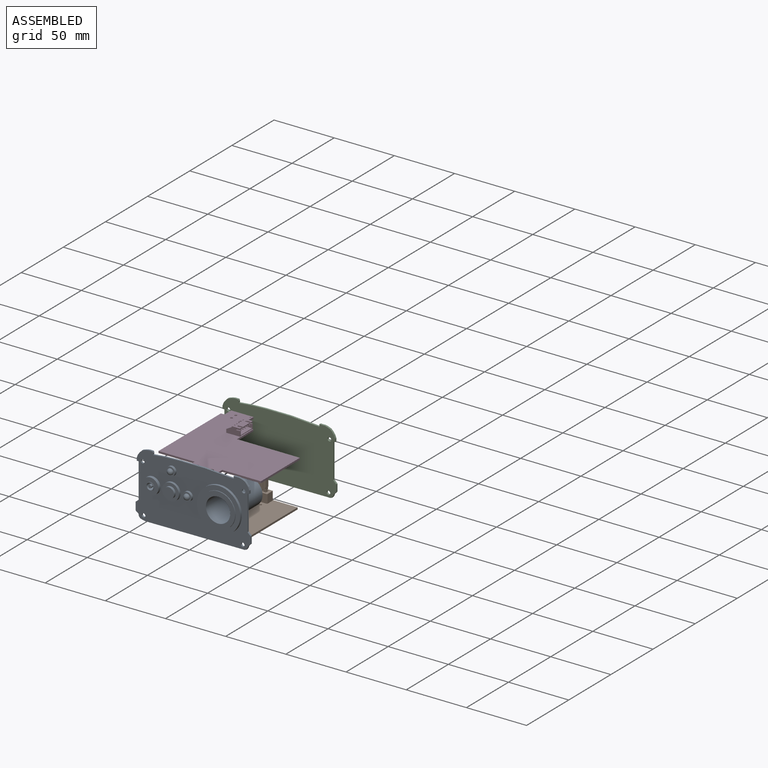
[diagram: assembled view]
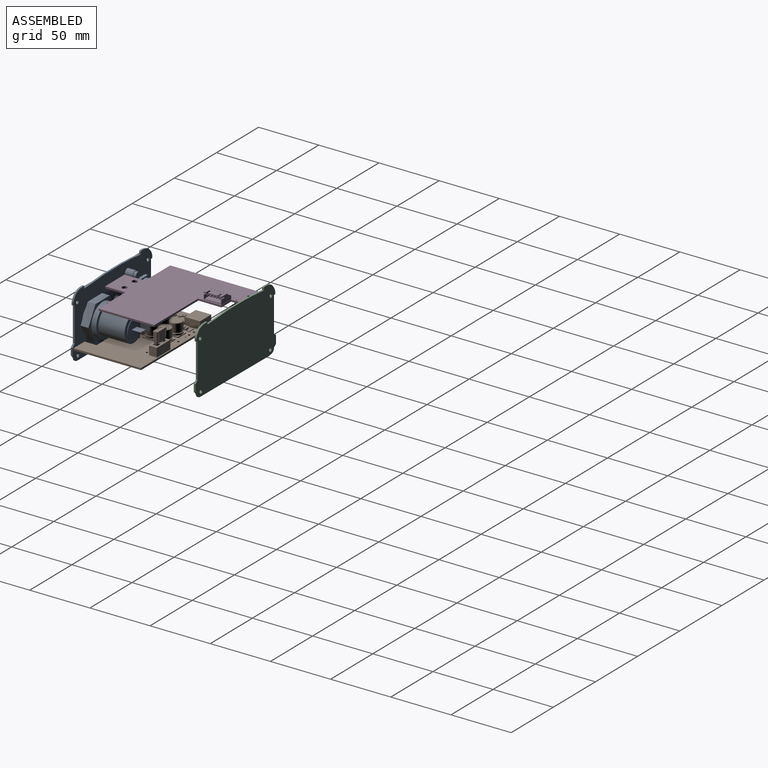
[diagram: assembled view, second angle]
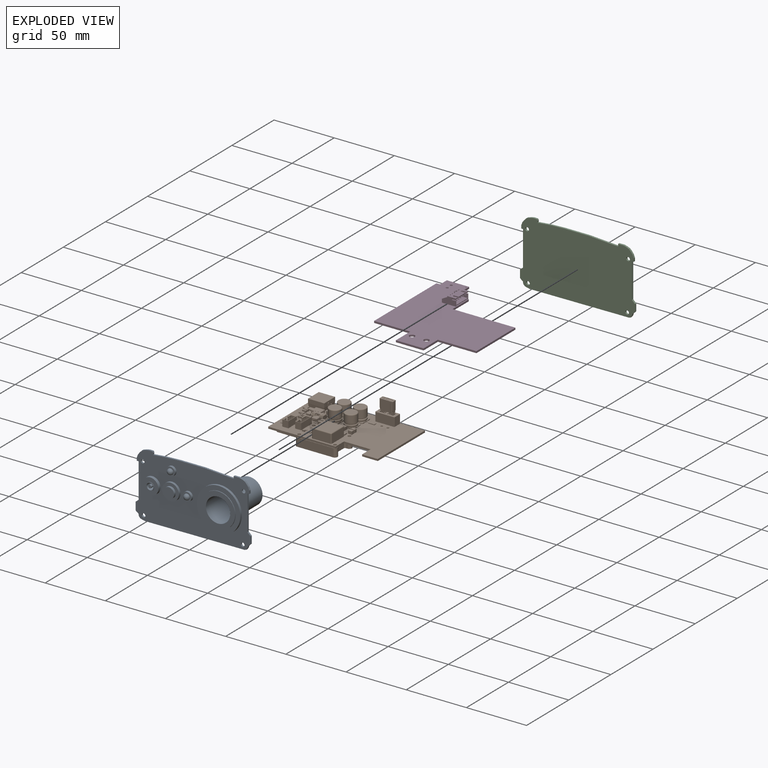
[diagram: exploded view]
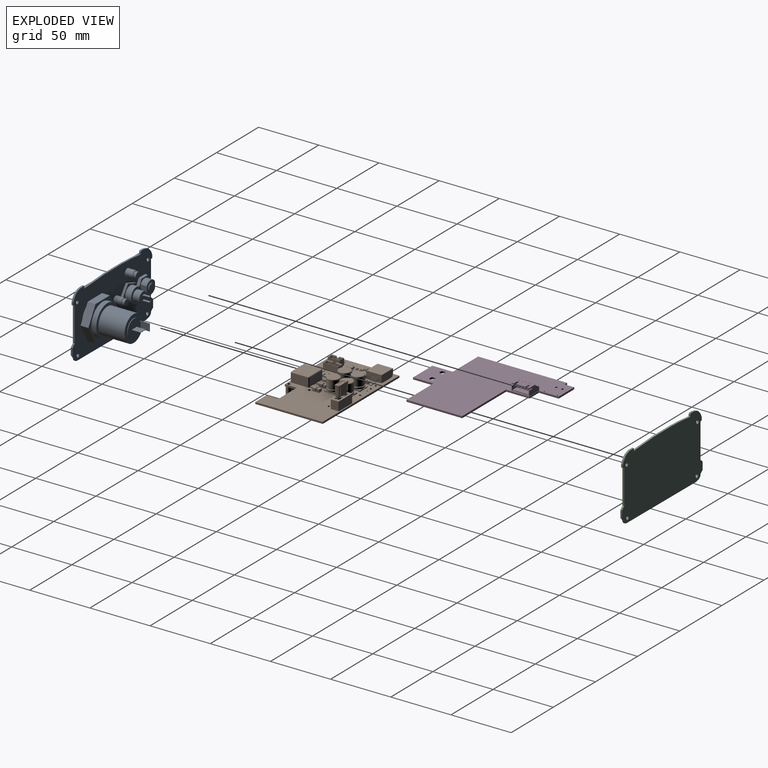
[diagram: exploded view, second angle]
FCSTD DOCUMENT  (FreeCAD 0.21R33694 (Git))
Label: case
License: All rights reserved
LicenseURL: http://en.wikipedia.org/wiki/All_rights_reserved
objects: App::Link×4, Sketcher::SketchObject×1, Part::Part2DObjectPython×1, Part::Extrusion×1, Part::Box×1, Part::MultiFuse×1
note: 5 computed .brp shape members not serialized (recipe doc carries the construction recipe); baked Part::Feature solids carry a one-line shape summary decoded from their .brp
EXTERNAL_REF file=front.FCStd obj=front_1
EXTERNAL_REF file=back.FCStd obj=back_1
EXTERNAL_REF file=pcb.FCStd obj=peak_ignitor_box_1
EXTERNAL_REF file=bms.FCStd obj=peak_ignitor_box_bms_1

FEATURE [Sketcher::SketchObject] Sketch
  FullyConstrained = false
  Placement = pos=(1.20227,0,0) rot=(0,0,1;0rad)
  sketch-geometry (244):
    g0: LineSegment StartX=-25.9049 StartY=13.1373 StartZ=0 EndX=-25.7102 EndY=14.7684 EndZ=0
    g1: LineSegment StartX=-25.7102 StartY=14.7684 StartZ=0 EndX=-25.0529 EndY=16.2292 EndZ=0
    g2: LineSegment StartX=-25.0529 StartY=16.2292 StartZ=0 EndX=-24.1277 EndY=17.276 EndZ=0
    g3: LineSegment StartX=-24.1277 StartY=17.276 StartZ=0 EndX=-22.9348 EndY=18.2011 EndZ=0
    g4: LineSegment StartX=-22.9348 StartY=18.2011 StartZ=0 EndX=-21.6689 EndY=18.615 EndZ=0
    g5: LineSegment StartX=-21.6689 StartY=18.615 StartZ=0 EndX=-19.6952 EndY=18.7908 EndZ=0
    g6: LineSegment StartX=-19.6952 StartY=18.7908 StartZ=0 EndX=-18.551 EndY=18.7421 EndZ=0
    g7: LineSegment StartX=-18.551 StartY=18.7421 StartZ=0 EndX=-18.0154 EndY=18.1821 EndZ=0
    g8: LineSegment StartX=-18.0154 StartY=18.1821 StartZ=0 EndX=-16.652 EndY=18.2795 EndZ=0
    g9: LineSegment StartX=-16.652 StartY=18.2795 StartZ=0 EndX=-11.15 EndY=18.7177 EndZ=0
    g10: LineSegment StartX=-11.15 StartY=18.7177 StartZ=0 EndX=-5.55062 EndY=18.9855 EndZ=0
    g11: LineSegment StartX=-5.55062 StartY=18.9855 StartZ=0 EndX=-0.608538 EndY=18.9855 EndZ=0
    g12: LineSegment StartX=-0.608538 StartY=18.9855 StartZ=0 EndX=-0.632884 EndY=18.5717 EndZ=0
    g13: LineSegment StartX=-0.632884 StartY=18.5717 StartZ=0 EndX=0.438309 EndY=18.3526 EndZ=0
    g14: LineSegment StartX=0.438309 StartY=18.3526 StartZ=0 EndX=0.608723 EndY=19.0586 EndZ=0
    g15: LineSegment StartX=0.608723 StartY=19.0586 StartZ=0 EndX=1.65557 EndY=19.0586 EndZ=0
    g16: LineSegment StartX=1.65557 StartY=19.0586 StartZ=0 EndX=1.75295 EndY=18.3526 EndZ=0
    g17: LineSegment StartX=1.75295 StartY=18.3526 StartZ=0 EndX=2.75111 EndY=18.3526 EndZ=0
    g18: LineSegment StartX=2.75111 StartY=18.3526 StartZ=0 EndX=2.84849 EndY=18.9612 EndZ=0
    g19: LineSegment StartX=2.84849 StartY=18.9612 StartZ=0 EndX=3.87099 EndY=18.9612 EndZ=0
    g20: LineSegment StartX=3.87099 StartY=18.9612 StartZ=0 EndX=4.0414 EndY=18.4013 EndZ=0
    g21: LineSegment StartX=4.0414 StartY=18.4013 StartZ=0 EndX=5.16128 EndY=18.4013 EndZ=0
    g22: LineSegment StartX=5.16128 StartY=18.4013 StartZ=0 EndX=5.12826 EndY=19.0391 EndZ=0
    g23: LineSegment StartX=5.12826 StartY=19.0391 StartZ=0 EndX=6.12641 EndY=19.0391 EndZ=0
    g24: LineSegment StartX=6.12641 StartY=19.0391 StartZ=0 EndX=6.29683 EndY=18.3575 EndZ=0
    g25: LineSegment StartX=6.29683 StartY=18.3575 StartZ=0 EndX=7.34368 EndY=18.3575 EndZ=0
    g26: LineSegment StartX=7.34368 StartY=18.3575 StartZ=0 EndX=7.31933 EndY=19.0148 EndZ=0
    g27: LineSegment StartX=7.31933 StartY=19.0148 StartZ=0 EndX=8.39052 EndY=19.0148 EndZ=0
    g28: LineSegment StartX=8.39052 StartY=19.0148 StartZ=0 EndX=8.60963 EndY=18.2601 EndZ=0
    g29: LineSegment StartX=8.60963 StartY=18.2601 StartZ=0 EndX=9.58344 EndY=18.2601 EndZ=0
    g30: LineSegment StartX=9.58344 StartY=18.2601 StartZ=0 EndX=9.68082 EndY=18.9418 EndZ=0
    g31: LineSegment StartX=9.68082 StartY=18.9418 StartZ=0 EndX=10.7764 EndY=18.7957 EndZ=0
    g32: LineSegment StartX=10.7764 StartY=18.7957 StartZ=0 EndX=10.9468 EndY=18.1627 EndZ=0
    g33: LineSegment StartX=10.9468 StartY=18.1627 StartZ=0 EndX=11.8962 EndY=18.1627 EndZ=0
    g34: LineSegment StartX=11.8962 StartY=18.1627 StartZ=0 EndX=11.9936 EndY=18.674 EndZ=0
    g35: LineSegment StartX=11.9936 StartY=18.674 StartZ=0 EndX=13.1378 EndY=18.674 EndZ=0
    g36: LineSegment StartX=13.1378 StartY=18.674 StartZ=0 EndX=13.1865 EndY=18.1384 EndZ=0
    g37: LineSegment StartX=13.1865 StartY=18.1384 StartZ=0 EndX=14.2821 EndY=18.0653 EndZ=0
    g38: LineSegment StartX=14.2821 StartY=18.0653 StartZ=0 EndX=14.2577 EndY=18.5766 EndZ=0
    g39: LineSegment StartX=14.2577 StartY=18.5766 StartZ=0 EndX=15.3533 EndY=18.5035 EndZ=0
    g40: LineSegment StartX=15.3533 StartY=18.5035 StartZ=0 EndX=15.4263 EndY=17.9679 EndZ=0
    g41: LineSegment StartX=15.4263 StartY=17.9679 StartZ=0 EndX=16.4975 EndY=17.8462 EndZ=0
    g42: LineSegment StartX=16.4975 StartY=17.8462 StartZ=0 EndX=16.5462 EndY=18.4062 EndZ=0
    g43: LineSegment StartX=16.5462 StartY=18.4062 StartZ=0 EndX=17.6174 EndY=18.3331 EndZ=0
    g44: LineSegment StartX=17.6174 StartY=18.3331 StartZ=0 EndX=17.7634 EndY=17.7002 EndZ=0
    g45: LineSegment StartX=17.7634 StartY=17.7002 StartZ=0 EndX=18.8833 EndY=17.7488 EndZ=0
    g46: LineSegment StartX=18.8833 StartY=17.7488 StartZ=0 EndX=18.9077 EndY=18.1627 EndZ=0
    g47: LineSegment StartX=18.9077 StartY=18.1627 StartZ=0 EndX=19.9058 EndY=18.1627 EndZ=0
    g48: LineSegment StartX=19.9058 StartY=18.1627 StartZ=0 EndX=20.1736 EndY=18.6253 EndZ=0
    g49: LineSegment StartX=20.1736 StartY=18.6253 StartZ=0 EndX=21.2448 EndY=18.6983 EndZ=0
    g50: LineSegment StartX=21.2448 StartY=18.6983 StartZ=0 EndX=23.0464 EndY=18.6009 EndZ=0
    g51: LineSegment StartX=23.0464 StartY=18.6009 StartZ=0 EndX=24.434 EndY=18.3818 EndZ=0
    g52: LineSegment StartX=24.434 StartY=18.3818 StartZ=0 EndX=25.5296 EndY=17.7245 EndZ=0
    g53: LineSegment StartX=25.5296 StartY=17.7245 StartZ=0 EndX=26.7712 EndY=16.5803 EndZ=0
    g54: LineSegment StartX=26.7712 StartY=16.5803 StartZ=0 EndX=27.4528 EndY=15.5091 EndZ=0
    g55: LineSegment StartX=27.4528 StartY=15.5091 StartZ=0 EndX=27.8667 EndY=14.2918 EndZ=0
    g56: LineSegment StartX=27.8667 StartY=14.2918 StartZ=0 EndX=27.9397 EndY=12.8798 EndZ=0
    g57: LineSegment StartX=27.9397 StartY=12.8798 StartZ=0 EndX=27.185 EndY=12.8798 EndZ=0
    g58: LineSegment StartX=27.185 StartY=12.8798 StartZ=0 EndX=27.0633 EndY=11.8329 EndZ=0
    g59: LineSegment StartX=27.0633 StartY=11.8329 StartZ=0 EndX=27.3068 EndY=11.6869 EndZ=0
    g60: LineSegment StartX=27.3068 StartY=11.6869 StartZ=0 EndX=27.3068 EndY=8.38419 EndZ=0
    g61: LineSegment StartX=27.3068 StartY=8.38419 StartZ=0 EndX=27.1194 EndY=8.38419 EndZ=0
    g62: LineSegment StartX=27.1194 StartY=8.38419 StartZ=0 EndX=27.0464 EndY=7.313 EndZ=0
    g63: LineSegment StartX=27.0464 StartY=7.313 StartZ=0 EndX=27.3872 EndY=7.19128 EndZ=0
    g64: LineSegment StartX=27.3872 StartY=7.19128 StartZ=0 EndX=27.3872 EndY=6.04705 EndZ=0
    g65: LineSegment StartX=27.3872 StartY=6.04705 StartZ=0 EndX=26.9733 EndY=5.99836 EndZ=0
    g66: LineSegment StartX=26.9733 StartY=5.99836 StartZ=0 EndX=26.9247 EndY=4.95152 EndZ=0
    g67: LineSegment StartX=26.9247 StartY=4.95152 StartZ=0 EndX=27.2655 EndY=4.90283 EndZ=0
    g68: LineSegment StartX=27.2655 StartY=4.90283 StartZ=0 EndX=27.3385 EndY=3.73426 EndZ=0
    g69: LineSegment StartX=27.3385 StartY=3.73426 StartZ=0 EndX=26.9733 EndY=3.61253 EndZ=0
    g70: LineSegment StartX=26.9733 StartY=3.61253 StartZ=0 EndX=26.9003 EndY=2.71176 EndZ=0
    g71: LineSegment StartX=26.9003 StartY=2.71176 StartZ=0 EndX=27.2411 EndY=2.54134 EndZ=0
    g72: LineSegment StartX=27.2411 StartY=2.54134 StartZ=0 EndX=27.3385 EndY=1.47015 EndZ=0
    g73: LineSegment StartX=27.3385 StartY=1.47015 StartZ=0 EndX=27.0464 EndY=1.39711 EndZ=0
    g74: LineSegment StartX=27.0464 StartY=1.39711 StartZ=0 EndX=27.0464 EndY=-3.8057 EndZ=0
    g75: LineSegment StartX=27.0464 StartY=-3.8057 StartZ=0 EndX=28.2635 EndY=-4.94992 EndZ=0
    g76: LineSegment StartX=28.2635 StartY=-4.94992 StartZ=0 EndX=28.4826 EndY=-8.47998 EndZ=0
    g77: LineSegment StartX=28.4826 StartY=-8.47998 StartZ=0 EndX=27.3384 EndY=-9.77028 EndZ=0
    g78: LineSegment StartX=27.3384 StartY=-9.77028 StartZ=0 EndX=26.7274 EndY=-10.9502 EndZ=0
    g79: LineSegment StartX=26.7274 StartY=-10.9502 StartZ=0 EndX=25.8023 EndY=-11.7293 EndZ=0
    g80: LineSegment StartX=25.8023 StartY=-11.7293 StartZ=0 EndX=24.9502 EndY=-11.851 EndZ=0
    g81: LineSegment StartX=24.9502 StartY=-11.851 StartZ=0 EndX=23.8059 EndY=-11.851 EndZ=0
    g82: LineSegment StartX=23.8059 StartY=-11.851 StartZ=0 EndX=23.6842 EndY=-12.3622 EndZ=0
    g83: LineSegment StartX=23.6842 StartY=-12.3622 StartZ=0 EndX=20.4463 EndY=-12.3622 EndZ=0
    g84: LineSegment StartX=20.4463 StartY=-12.3622 StartZ=0 EndX=20.3733 EndY=-11.851 EndZ=0
    g85: LineSegment StartX=20.3733 StartY=-11.851 StartZ=0 EndX=18.2552 EndY=-11.851 EndZ=0
    g86: LineSegment StartX=18.2552 StartY=-11.851 StartZ=0 EndX=18.2065 EndY=-12.4109 EndZ=0
    g87: LineSegment StartX=18.2065 StartY=-12.4109 StartZ=0 EndX=15.9668 EndY=-12.4109 EndZ=0
    g88: LineSegment StartX=15.9668 StartY=-12.4109 StartZ=0 EndX=15.9181 EndY=-11.8023 EndZ=0
    g89: LineSegment StartX=15.9181 StartY=-11.8023 StartZ=0 EndX=13.6053 EndY=-11.8023 EndZ=0
    g90: LineSegment StartX=13.6053 StartY=-11.8023 StartZ=0 EndX=13.6783 EndY=-12.3379 EndZ=0
    g91: LineSegment StartX=13.6783 StartY=-12.3379 StartZ=0 EndX=11.3655 EndY=-12.3379 EndZ=0
    g92: LineSegment StartX=11.3655 StartY=-12.3379 StartZ=0 EndX=11.2438 EndY=-11.8753 EndZ=0
    g93: LineSegment StartX=11.2438 StartY=-11.8753 StartZ=0 EndX=9.07707 EndY=-11.8753 EndZ=0
    g94: LineSegment StartX=9.07707 StartY=-11.8753 StartZ=0 EndX=8.97969 EndY=-12.3135 EndZ=0
    g95: LineSegment StartX=8.97969 StartY=-12.3135 StartZ=0 EndX=6.64255 EndY=-12.3135 EndZ=0
    g96: LineSegment StartX=6.64255 StartY=-12.3135 StartZ=0 EndX=6.64255 EndY=-11.851 EndZ=0
    g97: LineSegment StartX=6.64255 StartY=-11.851 StartZ=0 EndX=4.40279 EndY=-11.851 EndZ=0
    g98: LineSegment StartX=4.40279 StartY=-11.851 StartZ=0 EndX=4.3541 EndY=-12.3135 EndZ=0
    g99: LineSegment StartX=4.3541 StartY=-12.3135 StartZ=0 EndX=2.08999 EndY=-12.3135 EndZ=0
    g100: LineSegment StartX=2.08999 StartY=-12.3135 StartZ=0 EndX=2.02071 EndY=-11.7796 EndZ=0
    g101: LineSegment StartX=2.02071 StartY=-11.7796 StartZ=0 EndX=-0.194705 EndY=-11.7796 EndZ=0
    g102: LineSegment StartX=-0.194705 StartY=-11.7796 StartZ=0 EndX=-0.17036 EndY=-12.2422 EndZ=0
    g103: LineSegment StartX=-0.17036 StartY=-12.2422 StartZ=0 EndX=-2.43447 EndY=-12.3639 EndZ=0
    g104: LineSegment StartX=-2.43447 StartY=-12.3639 StartZ=0 EndX=-2.45881 EndY=-11.804 EndZ=0
    g105: LineSegment StartX=-2.45881 StartY=-11.804 StartZ=0 EndX=-4.72292 EndY=-11.804 EndZ=0
    g106: LineSegment StartX=-4.72292 StartY=-11.804 StartZ=0 EndX=-4.77161 EndY=-12.2909 EndZ=0
    g107: LineSegment StartX=-4.77161 StartY=-12.2909 StartZ=0 EndX=-7.03572 EndY=-12.3882 EndZ=0
    g108: LineSegment StartX=-7.03572 StartY=-12.3882 StartZ=0 EndX=-7.15744 EndY=-11.7553 EndZ=0
    g109: LineSegment StartX=-7.15744 StartY=-11.7553 StartZ=0 EndX=-9.49459 EndY=-11.8526 EndZ=0
    g110: LineSegment StartX=-9.49459 StartY=-11.8526 StartZ=0 EndX=-9.29983 EndY=-12.3639 EndZ=0
    g111: LineSegment StartX=-9.29983 StartY=-12.3639 StartZ=0 EndX=-11.5396 EndY=-12.3639 EndZ=0
    g112: LineSegment StartX=-11.5396 StartY=-12.3639 StartZ=0 EndX=-11.7343 EndY=-11.8283 EndZ=0
    g113: LineSegment StartX=-11.7343 StartY=-11.8283 StartZ=0 EndX=-13.9498 EndY=-11.8283 EndZ=0
    g114: LineSegment StartX=-13.9498 StartY=-11.8283 StartZ=0 EndX=-14.0471 EndY=-12.3152 EndZ=0
    g115: LineSegment StartX=-14.0471 StartY=-12.3152 StartZ=0 EndX=-16.1895 EndY=-12.4369 EndZ=0
    g116: LineSegment StartX=-16.1895 StartY=-12.4369 StartZ=0 EndX=-16.2139 EndY=-11.804 EndZ=0
    g117: LineSegment StartX=-16.2139 StartY=-11.804 StartZ=0 EndX=-18.551 EndY=-11.804 EndZ=0
    g118: LineSegment StartX=-18.551 StartY=-11.804 StartZ=0 EndX=-18.551 EndY=-12.2909 EndZ=0
    g119: LineSegment StartX=-18.551 StartY=-12.2909 StartZ=0 EndX=-21.6915 EndY=-12.2909 EndZ=0
    g120: LineSegment StartX=-21.6915 StartY=-12.2909 StartZ=0 EndX=-21.7159 EndY=-11.7796 EndZ=0
    g121: LineSegment StartX=-21.7159 StartY=-11.7796 StartZ=0 EndX=-22.7627 EndY=-11.8526 EndZ=0
    g122: LineSegment StartX=-22.7627 StartY=-11.8526 StartZ=0 EndX=-23.8826 EndY=-11.6092 EndZ=0
    g123: LineSegment StartX=-23.8826 StartY=-11.6092 StartZ=0 EndX=-24.9051 EndY=-10.611 EndZ=0
    g124: LineSegment StartX=-24.9051 StartY=-10.611 StartZ=0 EndX=-25.0755 EndY=-9.58854 EndZ=0
    g125: LineSegment StartX=-25.0755 StartY=-9.58854 StartZ=0 EndX=-26.3415 EndY=-8.41997 EndZ=0
    g126: LineSegment StartX=-26.3415 StartY=-8.41997 StartZ=0 EndX=-26.3415 EndY=-4.98696 EndZ=0
    g127: LineSegment StartX=-26.3415 StartY=-4.98696 StartZ=0 EndX=-25.0058 EndY=-3.79103 EndZ=0
    g128: LineSegment StartX=-25.0058 StartY=-3.79103 StartZ=0 EndX=-25.0058 EndY=1.35147 EndZ=0
    g129: LineSegment StartX=-25.0058 StartY=1.35147 StartZ=0 EndX=-25.3646 EndY=1.491 EndZ=0
    g130: LineSegment StartX=-25.3646 StartY=1.491 StartZ=0 EndX=-25.3646 EndY=2.70686 EndZ=0
    g131: LineSegment StartX=-25.3646 StartY=2.70686 StartZ=0 EndX=-25.0656 EndY=2.62713 EndZ=0
    g132: LineSegment StartX=-25.0656 StartY=2.62713 StartZ=0 EndX=-25.0243 EndY=3.77052 EndZ=0
    g133: LineSegment StartX=-25.0243 StartY=3.77052 StartZ=0 EndX=-25.3651 EndY=3.84355 EndZ=0
    g134: LineSegment StartX=-25.3651 StartY=3.84355 StartZ=0 EndX=-25.4625 EndY=4.96343 EndZ=0
    g135: LineSegment StartX=-25.4625 StartY=4.96343 StartZ=0 EndX=-25.073 EndY=4.93909 EndZ=0
    g136: LineSegment StartX=-25.073 StartY=4.93909 StartZ=0 EndX=-25.0243 EndY=5.96159 EndZ=0
    g137: LineSegment StartX=-25.0243 StartY=5.96159 StartZ=0 EndX=-25.3895 EndY=6.08331 EndZ=0
    g138: LineSegment StartX=-25.3895 StartY=6.08331 StartZ=0 EndX=-25.4382 EndY=7.10581 EndZ=0
    g139: LineSegment StartX=-25.4382 StartY=7.10581 StartZ=0 EndX=-25.073 EndY=7.30058 EndZ=0
    g140: LineSegment StartX=-25.073 StartY=7.30058 StartZ=0 EndX=-25.0243 EndY=8.29873 EndZ=0
    g141: LineSegment StartX=-25.0243 StartY=8.29873 StartZ=0 EndX=-25.3651 EndY=8.4448 EndZ=0
    g142: LineSegment StartX=-25.3651 StartY=8.4448 StartZ=0 EndX=-25.3651 EndY=11.7558 EndZ=0
    g143: LineSegment StartX=-25.3651 StartY=11.7558 StartZ=0 EndX=-25.146 EndY=11.8288 EndZ=0
    g144: LineSegment StartX=-25.146 StartY=11.8288 StartZ=0 EndX=-24.9756 EndY=12.8513 EndZ=0
    g145: LineSegment StartX=-24.9756 StartY=12.8513 StartZ=0 EndX=-25.9049 EndY=13.1373 EndZ=0
    g146: LineSegment StartX=-1.80546 StartY=17.6046 StartZ=0 EndX=-1.84555 EndY=18.2302 EndZ=0
    g147: LineSegment StartX=-1.84555 StartY=18.2302 StartZ=0 EndX=-7.43042 EndY=18.2302 EndZ=0
    g148: LineSegment StartX=-7.43042 StartY=18.2302 StartZ=0 EndX=-14.3192 EndY=17.6817 EndZ=0
    g149: LineSegment StartX=-14.3192 StartY=17.6817 StartZ=0 EndX=-17.3121 EndY=17.4278 EndZ=0
    g150: LineSegment StartX=-17.3121 StartY=17.4278 StartZ=0 EndX=-17.3121 EndY=16.4524 EndZ=0
    g151: LineSegment StartX=-17.3121 StartY=16.4524 StartZ=0 EndX=-18.0737 EndY=16.4124 EndZ=0
    g152: LineSegment StartX=-18.0737 StartY=16.4124 StartZ=0 EndX=-18.1138 EndY=15.4905 EndZ=0
    g153: LineSegment StartX=-18.1138 StartY=15.4905 StartZ=0 EndX=-18.1138 EndY=14.4349 EndZ=0
    g154: LineSegment StartX=-18.1138 StartY=14.4349 StartZ=0 EndX=-18.5146 EndY=13.9807 EndZ=0
    g155: LineSegment StartX=-18.5146 StartY=13.9807 StartZ=0 EndX=-19.1292 EndY=13.954 EndZ=0
    g156: LineSegment StartX=-19.1292 StartY=13.954 StartZ=0 EndX=-22.3625 EndY=13.954 EndZ=0
    g157: LineSegment StartX=-22.3625 StartY=13.954 StartZ=0 EndX=-22.8219 EndY=13.9209 EndZ=0
    g158: LineSegment StartX=-22.8219 StartY=13.9209 StartZ=0 EndX=-23.1693 EndY=14.1481 EndZ=0
    g159: LineSegment StartX=-23.1693 StartY=14.1481 StartZ=0 EndX=-23.5969 EndY=14.108 EndZ=0
    g160: LineSegment StartX=-23.5969 StartY=14.108 StartZ=0 EndX=-24.0912 EndY=13.814 EndZ=0
    g161: LineSegment StartX=-24.0912 StartY=13.814 StartZ=0 EndX=-24.158 EndY=13.3331 EndZ=0
    g162: LineSegment StartX=-24.158 StartY=13.3331 StartZ=0 EndX=-23.9042 EndY=12.8387 EndZ=0
    g163: LineSegment StartX=-23.9042 StartY=12.8387 StartZ=0 EndX=-23.6236 EndY=12.6516 EndZ=0
    g164: LineSegment StartX=-23.6236 StartY=12.6516 StartZ=0 EndX=-23.1292 EndY=12.6917 EndZ=0
    g165: LineSegment StartX=-23.1292 StartY=12.6917 StartZ=0 EndX=-22.6349 EndY=13.0391 EndZ=0
    g166: LineSegment StartX=-22.6349 StartY=13.0391 StartZ=0 EndX=-22.4879 EndY=12.7853 EndZ=0
    g167: LineSegment StartX=-22.4879 StartY=12.7853 StartZ=0 EndX=-22.4345 EndY=12.3176 EndZ=0
    g168: LineSegment StartX=-22.4345 StartY=12.3176 StartZ=0 EndX=-22.4345 EndY=11.8901 EndZ=0
    g169: LineSegment StartX=-22.4345 StartY=11.8901 StartZ=0 EndX=-22.7818 EndY=11.5828 EndZ=0
    g170: LineSegment StartX=-22.7818 StartY=11.5828 StartZ=0 EndX=-23.1693 EndY=11.4358 EndZ=0
    g171: LineSegment StartX=-23.1693 StartY=11.4358 StartZ=0 EndX=-24.1046 EndY=11.4759 EndZ=0
    g172: LineSegment StartX=-24.1046 StartY=11.4759 StartZ=0 EndX=-24.1046 EndY=2.57954 EndZ=0
    g173: LineSegment StartX=-24.1046 StartY=2.57954 StartZ=0 EndX=-24.1046 EndY=-5.1996 EndZ=0
    g174: LineSegment StartX=-24.1046 StartY=-5.1996 StartZ=0 EndX=-24.3445 EndY=-5.48018 EndZ=0
    g175: LineSegment StartX=-24.3445 StartY=-5.48018 StartZ=0 EndX=-25.1863 EndY=-5.48018 EndZ=0
    g176: LineSegment StartX=-25.1863 StartY=-5.48018 StartZ=0 EndX=-25.1863 EndY=-6.6025 EndZ=0
    g177: LineSegment StartX=-25.1863 StartY=-6.6025 StartZ=0 EndX=-24.104 EndY=-6.6025 EndZ=0
    g178: LineSegment StartX=-24.104 StartY=-6.6025 StartZ=0 EndX=-24.104 EndY=-7.28391 EndZ=0
    g179: LineSegment StartX=-24.104 StartY=-7.28391 StartZ=0 EndX=-25.1996 EndY=-7.37744 EndZ=0
    g180: LineSegment StartX=-25.1996 StartY=-7.37744 StartZ=0 EndX=-25.1328 EndY=-8.04549 EndZ=0
    g181: LineSegment StartX=-25.1328 StartY=-8.04549 StartZ=0 EndX=-24.0773 EndY=-9.00747 EndZ=0
    g182: LineSegment StartX=-24.0773 StartY=-9.00747 StartZ=0 EndX=-23.6364 EndY=-8.70017 EndZ=0
    g183: LineSegment StartX=-23.6364 StartY=-8.70017 StartZ=0 EndX=-23.1821 EndY=-8.45968 EndZ=0
    g184: LineSegment StartX=-23.1821 StartY=-8.45968 StartZ=0 EndX=-22.6744 EndY=-8.45968 EndZ=0
    g185: LineSegment StartX=-22.6744 StartY=-8.45968 StartZ=0 EndX=-21.9262 EndY=-8.83378 EndZ=0
    g186: LineSegment StartX=-21.9262 StartY=-8.83378 StartZ=0 EndX=-21.7525 EndY=-9.02084 EndZ=0
    g187: LineSegment StartX=-21.7525 StartY=-9.02084 StartZ=0 EndX=-22.1675 EndY=-9.3511 EndZ=0
    g188: LineSegment StartX=-22.1675 StartY=-9.3511 StartZ=0 EndX=-22.5416 EndY=-9.08389 EndZ=0
    g189: LineSegment StartX=-22.5416 StartY=-9.08389 StartZ=0 EndX=-22.9558 EndY=-8.85675 EndZ=0
    g190: LineSegment StartX=-22.9558 StartY=-8.85675 StartZ=0 EndX=-23.3031 EndY=-9.09724 EndZ=0
    g191: LineSegment StartX=-23.3031 StartY=-9.09724 StartZ=0 EndX=-23.6505 EndY=-9.47135 EndZ=0
    g192: LineSegment StartX=-23.6505 StartY=-9.47135 StartZ=0 EndX=-23.6772 EndY=-9.92562 EndZ=0
    g193: LineSegment StartX=-23.6772 StartY=-9.92562 StartZ=0 EndX=-23.3432 EndY=-10.3665 EndZ=0
    g194: LineSegment StartX=-23.3432 StartY=-10.3665 StartZ=0 EndX=-22.9691 EndY=-10.5135 EndZ=0
    g195: LineSegment StartX=-22.9691 StartY=-10.5135 StartZ=0 EndX=-22.4614 EndY=-10.3131 EndZ=0
    g196: LineSegment StartX=-22.4614 StartY=-10.3131 StartZ=0 EndX=-22.2343 EndY=-10.0993 EndZ=0
    g197: LineSegment StartX=-22.2343 StartY=-10.0993 StartZ=0 EndX=-22.0739 EndY=-10.2196 EndZ=0
    g198: LineSegment StartX=-22.0739 StartY=-10.2196 StartZ=0 EndX=-22.0739 EndY=-10.9277 EndZ=0
    g199: LineSegment StartX=-22.0739 StartY=-10.9277 StartZ=0 EndX=-19.0143 EndY=-10.9277 EndZ=0
    g200: LineSegment StartX=-19.0143 StartY=-10.9277 StartZ=0 EndX=24.0951 EndY=-10.9277 EndZ=0
    g201: LineSegment StartX=24.0951 StartY=-10.9277 StartZ=0 EndX=23.9556 EndY=-10.1296 EndZ=0
    g202: LineSegment StartX=23.9556 StartY=-10.1296 StartZ=0 EndX=24.2944 EndY=-10.01 EndZ=0
    g203: LineSegment StartX=24.2944 StartY=-10.01 StartZ=0 EndX=24.8326 EndY=-10.5282 EndZ=0
    g204: LineSegment StartX=24.8326 StartY=-10.5282 StartZ=0 EndX=25.6897 EndY=-10.1894 EndZ=0
    g205: LineSegment StartX=25.6897 StartY=-10.1894 StartZ=0 EndX=25.8292 EndY=-9.5914 EndZ=0
    g206: LineSegment StartX=25.8292 StartY=-9.5914 StartZ=0 EndX=25.3708 EndY=-8.99343 EndZ=0
    g207: LineSegment StartX=25.3708 StartY=-8.99343 StartZ=0 EndX=24.8725 EndY=-8.87384 EndZ=0
    g208: LineSegment StartX=24.8725 StartY=-8.87384 StartZ=0 EndX=24.2147 EndY=-9.21269 EndZ=0
    g209: LineSegment StartX=24.2147 StartY=-9.21269 StartZ=0 EndX=23.8161 EndY=-8.95357 EndZ=0
    g210: LineSegment StartX=23.8161 StartY=-8.95357 StartZ=0 EndX=24.6333 EndY=-8.33567 EndZ=0
    g211: LineSegment StartX=24.6333 StartY=-8.33567 StartZ=0 EndX=25.1715 EndY=-8.39546 EndZ=0
    g212: LineSegment StartX=25.1715 StartY=-8.39546 StartZ=0 EndX=25.9688 EndY=-8.83397 EndZ=0
    g213: LineSegment StartX=25.9688 StartY=-8.83397 StartZ=0 EndX=26.188 EndY=-8.9735 EndZ=0
    g214: LineSegment StartX=26.188 StartY=-8.9735 StartZ=0 EndX=27.2045 EndY=-7.99682 EndZ=0
    g215: LineSegment StartX=27.2045 StartY=-7.99682 StartZ=0 EndX=27.085 EndY=-7.35899 EndZ=0
    g216: LineSegment StartX=27.085 StartY=-7.35899 StartZ=0 EndX=26.2079 EndY=-7.27926 EndZ=0
    g217: LineSegment StartX=26.2079 StartY=-7.27926 StartZ=0 EndX=26.1083 EndY=-6.50191 EndZ=0
    g218: LineSegment StartX=26.1083 StartY=-6.50191 StartZ=0 EndX=27.0451 EndY=-6.5617 EndZ=0
    g219: LineSegment StartX=27.0451 StartY=-6.5617 StartZ=0 EndX=27.1248 EndY=-5.54516 EndZ=0
    g220: LineSegment StartX=27.1248 StartY=-5.54516 StartZ=0 EndX=26.2677 EndY=-5.40564 EndZ=0
    g221: LineSegment StartX=26.2677 StartY=-5.40564 StartZ=0 EndX=26.2677 EndY=11.5712 EndZ=0
    g222: LineSegment StartX=26.2677 StartY=11.5712 StartZ=0 EndX=24.9534 EndY=11.5712 EndZ=0
    g223: LineSegment StartX=24.9534 StartY=11.5712 StartZ=0 EndX=24.5946 EndY=11.8303 EndZ=0
    g224: LineSegment StartX=24.5946 StartY=11.8303 StartZ=0 EndX=24.4352 EndY=12.3485 EndZ=0
    g225: LineSegment StartX=24.4352 StartY=12.3485 StartZ=0 EndX=24.5547 EndY=13.0063 EndZ=0
    g226: LineSegment StartX=24.5547 StartY=13.0063 StartZ=0 EndX=25.0331 EndY=12.787 EndZ=0
    g227: LineSegment StartX=25.0331 StartY=12.787 StartZ=0 EndX=25.7108 EndY=12.6475 EndZ=0
    g228: LineSegment StartX=25.7108 StartY=12.6475 StartZ=0 EndX=26.0098 EndY=13.1259 EndZ=0
    g229: LineSegment StartX=26.0098 StartY=13.1259 StartZ=0 EndX=26.0696 EndY=13.6441 EndZ=0
    g230: LineSegment StartX=26.0696 StartY=13.6441 StartZ=0 EndX=25.7706 EndY=14.0228 EndZ=0
    g231: LineSegment StartX=25.7706 StartY=14.0228 StartZ=0 EndX=25.2922 EndY=14.2022 EndZ=0
    g232: LineSegment StartX=25.2922 StartY=14.2022 StartZ=0 EndX=24.8338 EndY=14.0427 EndZ=0
    g233: LineSegment StartX=24.8338 StartY=14.0427 StartZ=0 EndX=24.6544 EndY=13.7836 EndZ=0
    g234: LineSegment StartX=24.6544 StartY=13.7836 StartZ=0 EndX=20.5284 EndY=13.7836 EndZ=0
    g235: LineSegment StartX=20.5284 StartY=13.7836 StartZ=0 EndX=20.1896 EndY=14.1025 EndZ=0
    g236: LineSegment StartX=20.1896 StartY=14.1025 StartZ=0 EndX=19.9903 EndY=14.561 EndZ=0
    g237: LineSegment StartX=19.9903 StartY=14.561 StartZ=0 EndX=20.1099 EndY=16.1954 EndZ=0
    g238: LineSegment StartX=20.1099 StartY=16.1954 StartZ=0 EndX=18.9088 EndY=16.3873 EndZ=0
    g239: LineSegment StartX=18.9088 StartY=16.3873 StartZ=0 EndX=18.8092 EndY=16.786 EndZ=0
    g240: LineSegment StartX=18.8092 StartY=16.786 StartZ=0 EndX=13.0089 EndY=17.2644 EndZ=0
    g241: LineSegment StartX=13.0089 StartY=17.2644 StartZ=0 EndX=8.50423 EndY=17.4238 EndZ=0
    g242: LineSegment StartX=8.50423 StartY=17.4238 StartZ=0 EndX=3.36981 EndY=17.6046 EndZ=0
    g243: LineSegment StartX=3.36981 StartY=17.6046 StartZ=0 EndX=-1.80546 EndY=17.6046 EndZ=0
  constraints (302):
    c: Coincident(g0,g1)
    c: Coincident(g1,g2)
    c: Coincident(g2,g3)
    c: Coincident(g3,g4)
    c: Coincident(g4,g5)
    c: Coincident(g5,g6)
    c: Coincident(g6,g7)
    c: Coincident(g7,g8)
    c: Coincident(g8,g9)
    c: Coincident(g9,g10)
    c: Coincident(g10,g11)
    c: Horizontal(g11)
    c: Coincident(g11,g12)
    c: Coincident(g12,g13)
    c: Coincident(g13,g14)
    c: Coincident(g14,g15)
    c: Horizontal(g15)
    c: Coincident(g15,g16)
    c: Coincident(g16,g17)
    c: Horizontal(g17)
    c: Coincident(g17,g18)
    c: Coincident(g18,g19)
    c: Horizontal(g19)
    c: Coincident(g19,g20)
    c: Coincident(g20,g21)
    c: Horizontal(g21)
    c: Coincident(g21,g22)
    c: Coincident(g22,g23)
    c: Horizontal(g23)
    c: Coincident(g23,g24)
    c: Coincident(g24,g25)
    c: Horizontal(g25)
    c: Coincident(g25,g26)
    c: Coincident(g26,g27)
    c: Horizontal(g27)
    c: Coincident(g27,g28)
    c: Coincident(g28,g29)
    c: Horizontal(g29)
    c: Coincident(g29,g30)
    c: Coincident(g30,g31)
    c: Coincident(g31,g32)
    c: Coincident(g32,g33)
    c: Horizontal(g33)
    c: Coincident(g33,g34)
    c: Coincident(g34,g35)
    c: Horizontal(g35)
    c: Coincident(g35,g36)
    c: Coincident(g36,g37)
    c: Coincident(g37,g38)
    c: Coincident(g38,g39)
    c: Coincident(g39,g40)
    c: Coincident(g40,g41)
    c: Coincident(g41,g42)
    c: Coincident(g42,g43)
    c: Coincident(g43,g44)
    c: Coincident(g44,g45)
    c: Coincident(g45,g46)
    c: Coincident(g46,g47)
    c: Horizontal(g47)
    c: Coincident(g47,g48)
    c: Coincident(g48,g49)
    c: Coincident(g49,g50)
    c: Coincident(g50,g51)
    c: Coincident(g51,g52)
    c: Coincident(g52,g53)
    c: Coincident(g53,g54)
    c: Coincident(g54,g55)
    c: Coincident(g55,g56)
    c: Coincident(g56,g57)
    c: Horizontal(g57)
    c: Coincident(g57,g58)
    c: Coincident(g58,g59)
    c: Coincident(g59,g60)
    c: Vertical(g60)
    c: Coincident(g60,g61)
    c: Horizontal(g61)
    c: Coincident(g61,g62)
    c: Coincident(g62,g63)
    c: Coincident(g63,g64)
    c: Vertical(g64)
    c: Coincident(g64,g65)
    c: Coincident(g65,g66)
    c: Coincident(g66,g67)
    c: Coincident(g67,g68)
    c: Coincident(g68,g69)
    c: Coincident(g69,g70)
    c: Coincident(g70,g71)
    c: Coincident(g71,g72)
    c: Coincident(g72,g73)
    c: Coincident(g73,g74)
    c: Vertical(g74)
    c: Coincident(g74,g75)
    c: Coincident(g75,g76)
    c: Coincident(g76,g77)
    c: Coincident(g77,g78)
    c: Coincident(g78,g79)
    c: Coincident(g79,g80)
    c: Coincident(g80,g81)
    c: Horizontal(g81)
    c: Coincident(g81,g82)
    c: Coincident(g82,g83)
    c: Horizontal(g83)
    c: Coincident(g83,g84)
    c: Coincident(g84,g85)
    c: Horizontal(g85)
    c: Coincident(g85,g86)
    c: Coincident(g86,g87)
    c: Horizontal(g87)
    c: Coincident(g87,g88)
    c: Coincident(g88,g89)
    c: Horizontal(g89)
    c: Coincident(g89,g90)
    c: Coincident(g90,g91)
    c: Horizontal(g91)
    c: Coincident(g91,g92)
    c: Coincident(g92,g93)
    c: Horizontal(g93)
    c: Coincident(g93,g94)
    c: Coincident(g94,g95)
    c: Horizontal(g95)
    c: Coincident(g95,g96)
    c: Vertical(g96)
    c: Coincident(g96,g97)
    c: Horizontal(g97)
    c: Coincident(g97,g98)
    c: Coincident(g98,g99)
    c: Horizontal(g99)
    c: Coincident(g99,g100)
    c: Coincident(g100,g101)
    c: Horizontal(g101)
    c: Coincident(g101,g102)
    c: Coincident(g102,g103)
    c: Coincident(g103,g104)
    c: Coincident(g104,g105)
    c: Horizontal(g105)
    c: Coincident(g105,g106)
    c: Coincident(g106,g107)
    c: Coincident(g107,g108)
    c: Coincident(g108,g109)
    c: Coincident(g109,g110)
    c: Coincident(g110,g111)
    c: Horizontal(g111)
    c: Coincident(g111,g112)
    c: Coincident(g112,g113)
    c: Horizontal(g113)
    c: Coincident(g113,g114)
    c: Coincident(g114,g115)
    c: Coincident(g115,g116)
    c: Coincident(g116,g117)
    c: Horizontal(g117)
    c: Coincident(g117,g118)
    c: Vertical(g118)
    c: Coincident(g118,g119)
    c: Horizontal(g119)
    c: Coincident(g119,g120)
    c: Coincident(g120,g121)
    c: Coincident(g121,g122)
    c: Coincident(g122,g123)
    c: Coincident(g123,g124)
    c: Coincident(g124,g125)
    c: Coincident(g125,g126)
    c: Vertical(g126)
    c: Coincident(g126,g127)
    c: Coincident(g127,g128)
    c: Vertical(g128)
    c: Coincident(g128,g129)
    c: Coincident(g129,g130)
    c: Vertical(g130)
    c: Coincident(g130,g131)
    c: Coincident(g131,g132)
    c: Coincident(g132,g133)
    c: Coincident(g133,g134)
    c: Coincident(g134,g135)
    c: Coincident(g135,g136)
    c: Coincident(g136,g137)
    c: Coincident(g137,g138)
    c: Coincident(g138,g139)
    c: Coincident(g139,g140)
    c: Coincident(g140,g141)
    c: Coincident(g141,g142)
    c: Vertical(g142)
    c: Coincident(g142,g143)
    c: Coincident(g143,g144)
    c: Coincident(g144,g145)
    c: Coincident(g145,g0)
    c: Coincident(g146,g147)
    c: Horizontal(g147)
    c: Coincident(g147,g148)
    c: Coincident(g148,g149)
    c: Coincident(g149,g150)
    c: Vertical(g150)
    c: Coincident(g150,g151)
    c: Coincident(g151,g152)
    c: Coincident(g152,g153)
    c: Vertical(g153)
    c: Coincident(g153,g154)
    c: Coincident(g154,g155)
    c: Coincident(g155,g156)
    c: Horizontal(g156)
    c: Coincident(g156,g157)
    c: Coincident(g157,g158)
    c: Coincident(g158,g159)
    c: Coincident(g159,g160)
    c: Coincident(g160,g161)
    c: Coincident(g161,g162)
    c: Coincident(g162,g163)
    c: Coincident(g163,g164)
    c: Coincident(g164,g165)
    c: Coincident(g165,g166)
    c: Coincident(g166,g167)
    c: Coincident(g167,g168)
    c: Vertical(g168)
    c: Coincident(g168,g169)
    c: Coincident(g169,g170)
    c: Coincident(g170,g171)
    c: Coincident(g171,g172)
    c: Vertical(g172)
    c: Coincident(g172,g173)
    c: Vertical(g173)
    c: Coincident(g173,g174)
    c: Coincident(g174,g175)
    c: Horizontal(g175)
    c: Coincident(g175,g176)
    c: Vertical(g176)
    c: Coincident(g176,g177)
    c: Horizontal(g177)
    c: Coincident(g177,g178)
    c: Vertical(g178)
    c: Coincident(g178,g179)
    c: Coincident(g179,g180)
    c: Coincident(g180,g181)
    c: Coincident(g181,g182)
    c: Coincident(g182,g183)
    c: Coincident(g183,g184)
    c: Horizontal(g184)
    c: Coincident(g184,g185)
    c: Coincident(g185,g186)
    c: Coincident(g186,g187)
    c: Coincident(g187,g188)
    c: Coincident(g188,g189)
    c: Coincident(g189,g190)
    c: Coincident(g190,g191)
    c: Coincident(g191,g192)
    c: Coincident(g192,g193)
    c: Coincident(g193,g194)
    c: Coincident(g194,g195)
    c: Coincident(g195,g196)
    c: Coincident(g196,g197)
    c: Coincident(g197,g198)
    c: Vertical(g198)
    c: Coincident(g198,g199)
    c: Horizontal(g199)
    c: Coincident(g199,g200)
    c: Horizontal(g200)
    c: Coincident(g200,g201)
    c: Coincident(g201,g202)
    c: Coincident(g202,g203)
    c: Coincident(g203,g204)
    c: Coincident(g204,g205)
    c: Coincident(g205,g206)
    c: Coincident(g206,g207)
    c: Coincident(g207,g208)
    c: Coincident(g208,g209)
    c: Coincident(g209,g210)
    c: Coincident(g210,g211)
    c: Coincident(g211,g212)
    c: Coincident(g212,g213)
    c: Coincident(g213,g214)
    c: Coincident(g214,g215)
    c: Coincident(g215,g216)
    c: Coincident(g216,g217)
    c: Coincident(g217,g218)
    c: Coincident(g218,g219)
    c: Coincident(g219,g220)
    c: Coincident(g220,g221)
    c: Vertical(g221)
    c: Coincident(g221,g222)
    c: Horizontal(g222)
    c: Coincident(g222,g223)
    c: Coincident(g223,g224)
    c: Coincident(g224,g225)
    c: Coincident(g225,g226)
    c: Coincident(g226,g227)
    c: Coincident(g227,g228)
    c: Coincident(g228,g229)
    c: Coincident(g229,g230)
    c: Coincident(g230,g231)
    c: Coincident(g231,g232)
    c: Coincident(g232,g233)
    c: Coincident(g233,g234)
    c: Horizontal(g234)
    c: Coincident(g234,g235)
    c: Coincident(g235,g236)
    c: Coincident(g236,g237)
    c: Coincident(g237,g238)
    c: Coincident(g238,g239)
    c: Coincident(g239,g240)
    c: Coincident(g240,g241)
    c: Coincident(g241,g242)
    c: Coincident(g242,g243)
    c: Coincident(g243,g146)
    c: Horizontal(g243)
FEATURE [Part::Part2DObjectPython] Clone2D  label="Sketch (2D)"  # Draft 2D object (typed FeaturePython)
  Fuse = false
  Objects = -> [Sketch]
  Placement = pos=(2.06791,0,0) rot=(0,0,1;0rad)
  Scale = (1.72,1.72,1.72)
FEATURE [Part::Extrusion] Extrude
  Base = -> Clone2D
  Dir = (0,0,100)
  DirMode = 0
  FaceMakerClass = Part::FaceMakerBullseye
  LengthFwd = 100
  LengthRev = 0
  Placement = pos=(0,0,0) rot=(1,0,0;1.5708rad)
  Solid = true
  Symmetric = false
FEATURE [Part::Box] Box003  label="Würfel003"
  AttacherType = Attacher::AttachEngine3D
  Height = 72
  Length = 38
  Placement = pos=(-33,-99,20) rot=(0,1,0;1.5708rad)
  Width = 38
FEATURE [App::Link] Link
  LinkPlacement = pos=(0,-132,58) rot=(1,0,0;1.5708rad)
  LinkedObject = -> <external front.FCStd>#front_1
  Placement = pos=(0,-132,58) rot=(1,0,0;1.5708rad)
FEATURE [Part::MultiFuse] Fusion003
  Placement = pos=(245,-132,11) rot=(0,0,1;3.14159rad)
  Shapes = -> [Box003,Extrude]
FEATURE [App::Link] Link002  label="back"
  LinkPlacement = pos=(29.5,-30,97) rot=(1,0,0;1.5708rad)
  LinkedObject = -> <external back.FCStd>#back_1
  Placement = pos=(29.5,-30,97) rot=(1,0,0;1.5708rad)
FEATURE [App::Link] Link001  label="pcb"
  LinkPlacement = pos=(0,-2,0) rot=(0,0,1;0rad)
  LinkedObject = -> <external pcb.FCStd>#peak_ignitor_box_1
  Placement = pos=(0,-2,0) rot=(0,0,1;0rad)
FEATURE [App::Link] Link003  label="bms"
  LinkPlacement = pos=(362,-147,33) rot=(0,0,1;3.14159rad)
  LinkedObject = -> <external bms.FCStd>#peak_ignitor_box_bms_1
  Placement = pos=(362,-147,33) rot=(0,0,1;3.14159rad)
